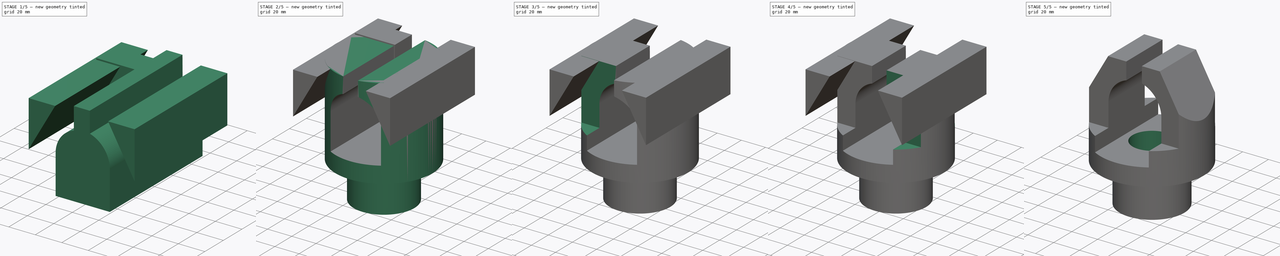
[diagram: build sequence overview — one tinted view per stage of 5, left to right]
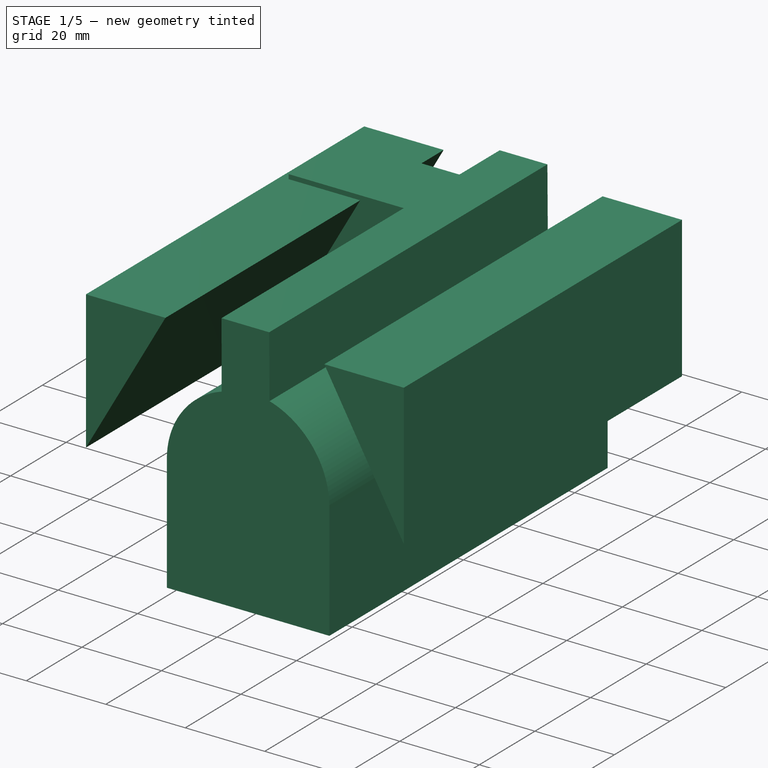
[diagram: stage 1 of 5 — iso view after this stage's code; geometry added in this stage tinted green]
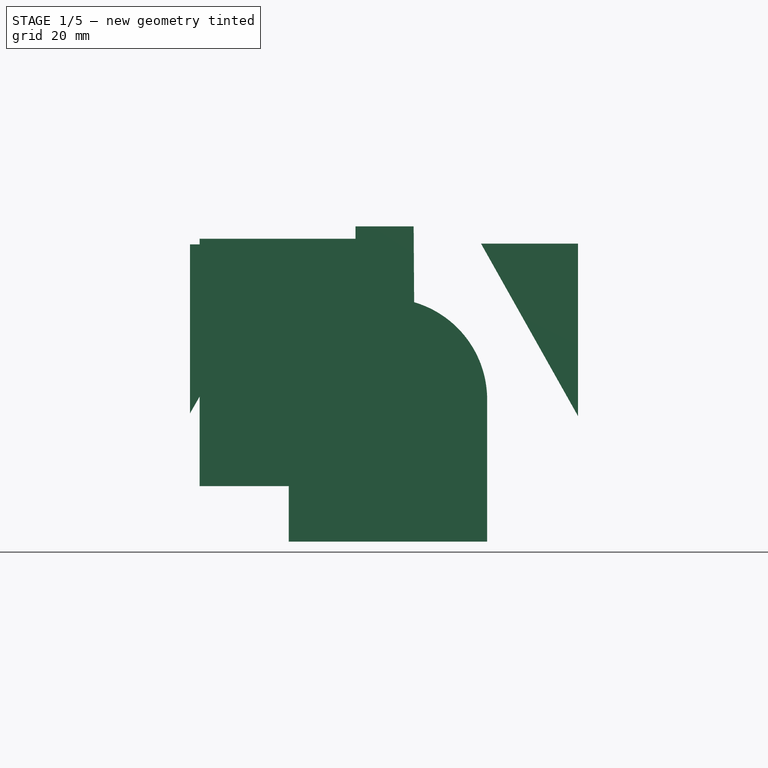
[diagram: stage 1 of 5 — front view after this stage's code; geometry added in this stage tinted green]
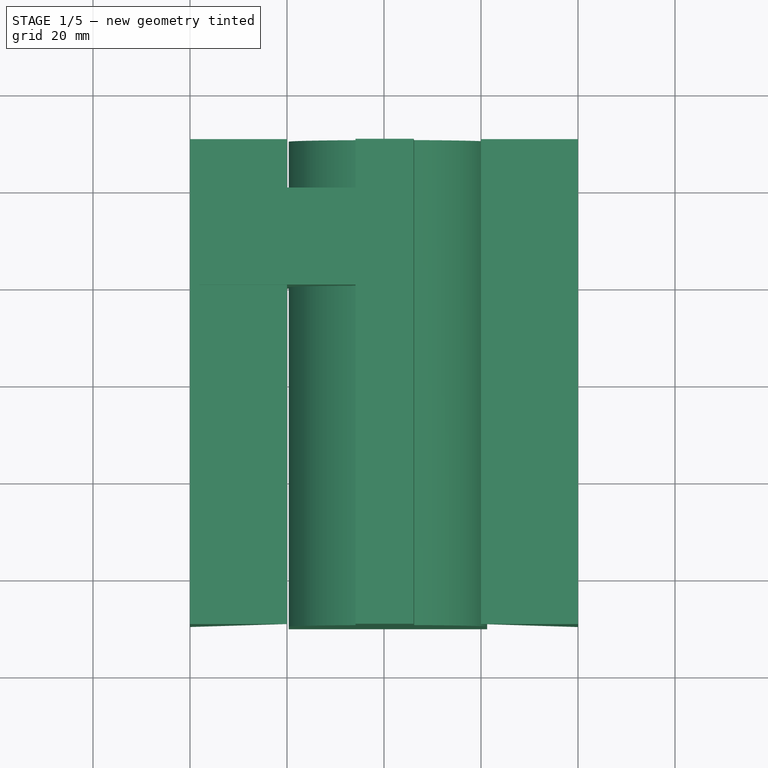
[diagram: stage 1 of 5 — top view after this stage's code; geometry added in this stage tinted green]
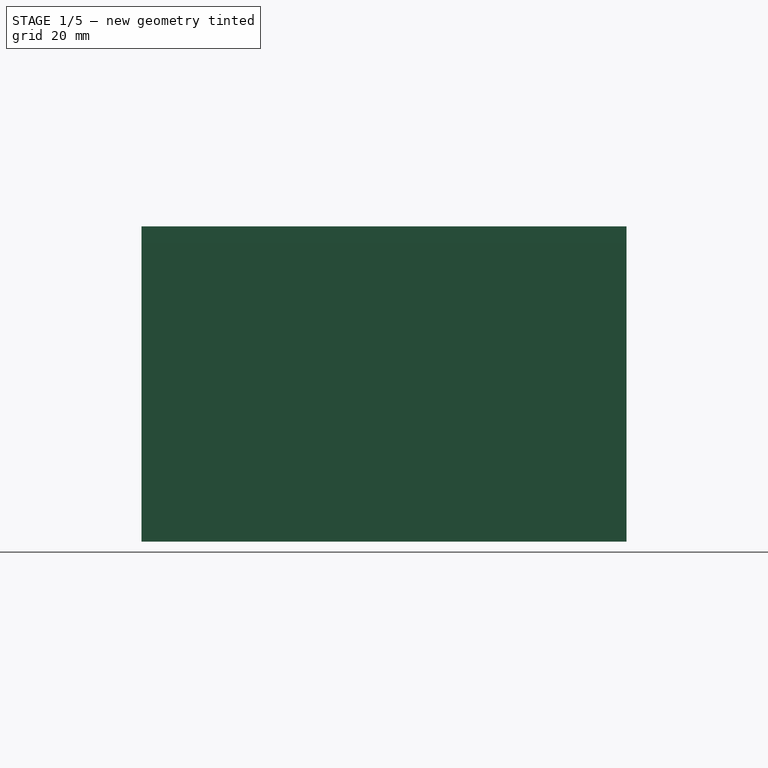
[diagram: stage 1 of 5 — right view after this stage's code; geometry added in this stage tinted green]
FCSTD DOCUMENT  (FreeCAD 0.14R3702 (Git))
Label: ejer11
License: CC-BY 3.0
LicenseURL: http://creativecommons.org/licenses/by/3.0/
objects: Sketcher::SketchObject×7, Part::Cut×7, PartDesign::Pad×5, Part::Box×4, PartDesign::Pocket×2, Part::MultiFuse×1
note: 33 computed .brp shape members not serialized (recipe doc carries the construction recipe); baked Part::Feature solids carry a one-line shape summary decoded from their .brp

FEATURE [Sketcher::SketchObject] Sketch002
  Placement = pos=(-81,0,6) rot=(-1,0,0;4.71239rad)
  sketch-geometry (8):
    g0: LineSegment StartX=61.374 StartY=37.5545 StartZ=0 EndX=102.261 EndY=37.5545 EndZ=0
    g1: LineSegment StartX=61.374 StartY=37.5545 StartZ=0 EndX=61.374 EndY=67.546 EndZ=0
    g2: LineSegment StartX=87.2111 StartY=86.9199 StartZ=0 EndX=87.1119 EndY=102.555 EndZ=0
    g3: LineSegment StartX=87.1119 StartY=102.555 StartZ=0 EndX=75.1119 EndY=102.555 EndZ=0
    g4: LineSegment StartX=75.1119 StartY=102.555 StartZ=0 EndX=75.1584 EndY=85.861 EndZ=0
    g5: ArcOfCircle CenterX=81.3618 CenterY=66.8474 CenterZ=0 NormalX=0 NormalY=0 NormalZ=1 Radius=20 StartAngle=1.88617 EndAngle=3.10665
    g6: LineSegment StartX=102.261 StartY=37.5545 StartZ=0 EndX=102.261 EndY=66.2573 EndZ=0
    g7: ArcOfCircle CenterX=81.3618 CenterY=66.8474 CenterZ=0 NormalX=0 NormalY=0 NormalZ=1 Radius=20.9074 StartAngle=6.25496 EndAngle=7.57043
  constraints (16):
    c: Horizontal(g0)
    c: Vertical(g1)
    c: Coincident(g0,g1)
    c: Coincident(g2,g3)
    c: Horizontal(g3)
    c: Coincident(g3,g4)
    c: DistanceX(g3) = -12
    c: Coincident(g4,g5)
    c: Coincident(g1,g5)
    c: DistanceY(g0,g2) = 65
    c: Coincident(g6,g0)
    c: Vertical(g6)
    c: Radius(g5) = 20
    c: Coincident(g7,g5)
    c: Coincident(g7,g2)
    c: Coincident(g7,g6)
FEATURE [PartDesign::Pad] Pad002
  Length = 100
  Length2 = 100
  Midplane = true
  Placement = pos=(-81,0,6) rot=(-1,0,0;4.71239rad)
  Sketch = -> Sketch002
  Type = 0
FEATURE [Part::Box] Box003  label="Cubo003"
  Height = 51
  Length = 33
  Placement = pos=(-38,20,55) rot=(0,0,1;0rad)
  Width = 20
FEATURE [Sketcher::SketchObject] Sketch003
  Placement = pos=(0,0,0) rot=(-1,0,0;4.71239rad)
  sketch-geometry (3):
    g0: LineSegment StartX=20 StartY=105 StartZ=0 EndX=40 EndY=69.4381 EndZ=0
    g1: LineSegment StartX=40 StartY=69.4381 StartZ=0 EndX=40 EndY=105 EndZ=0
    g2: LineSegment StartX=40 StartY=105 StartZ=0 EndX=20 EndY=105 EndZ=0
  constraints (5):
    c: Coincident(g0,g1)
    c: Vertical(g1)
    c: Coincident(g1,g2)
    c: Coincident(g2,g0)
    c: Horizontal(g2)
FEATURE [PartDesign::Pad] Pad003
  Length = 100
  Length2 = 100
  Midplane = true
  Placement = pos=(0,0,0) rot=(-1,0,0;4.71239rad)
  Sketch = -> Sketch003
  Type = 0
FEATURE [Sketcher::SketchObject] Sketch004
  Placement = pos=(0,0,0) rot=(-1,0,0;4.71239rad)
  sketch-geometry (6):
    g0: LineSegment [constr] StartX=-40 StartY=0 StartZ=0 EndX=-40 EndY=70 EndZ=0
    g1: LineSegment [constr] StartX=-40 StartY=-0.150125 StartZ=0 EndX=-40 EndY=104.85 EndZ=0
    g2: LineSegment [constr] StartX=-40 StartY=104.85 StartZ=0 EndX=-20 EndY=104.85 EndZ=0
    g3: LineSegment StartX=-40 StartY=70 StartZ=0 EndX=-20 EndY=104.85 EndZ=0
    g4: LineSegment StartX=-40 StartY=70 StartZ=0 EndX=-40 EndY=104.85 EndZ=0
    g5: LineSegment StartX=-40 StartY=104.85 StartZ=0 EndX=-20 EndY=104.85 EndZ=0
  constraints (16):
    c: PointOnObject(g0,g-1)
    c: Vertical(g0)
    c: DistanceX(g-1,g0) = -40
    c: DistanceY(g0) = 70
    c: Vertical(g1)
    c: DistanceY(g1,g1) = -105
    c: DistanceX(g-1,g1) = -40
    c: Coincident(g2,g1)
    c: Horizontal(g2)
    c: DistanceX(g2) = 20
    c: Coincident(g3,g0)
    c: Coincident(g0,g4)
    c: Coincident(g4,g1)
    c: Coincident(g4,g5)
    c: Coincident(g2,g3)
    c: Coincident(g2,g5)
FEATURE [PartDesign::Pad] Pad004
  Length = 100
  Length2 = 100
  Midplane = true
  Placement = pos=(0,0,0) rot=(-1,0,0;4.71239rad)
  Sketch = -> Sketch004
  Type = 0
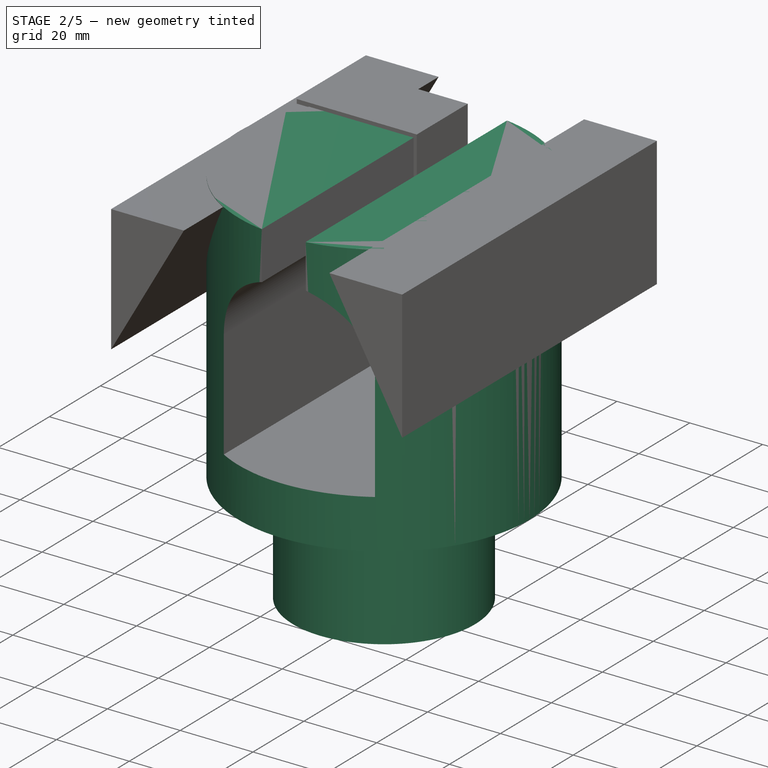
[diagram: stage 2 of 5 — iso view after this stage's code; geometry added in this stage tinted green]
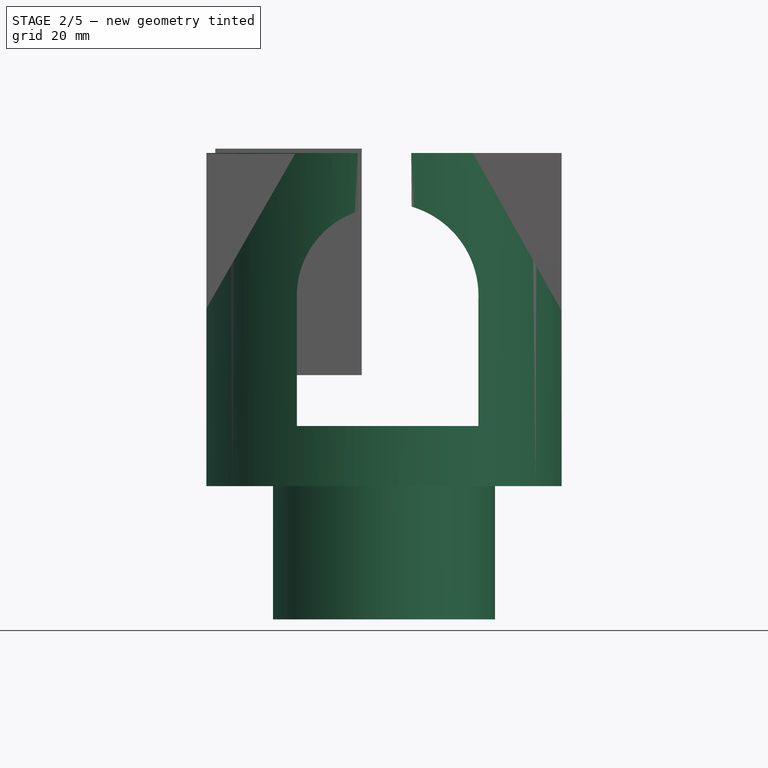
[diagram: stage 2 of 5 — front view after this stage's code; geometry added in this stage tinted green]
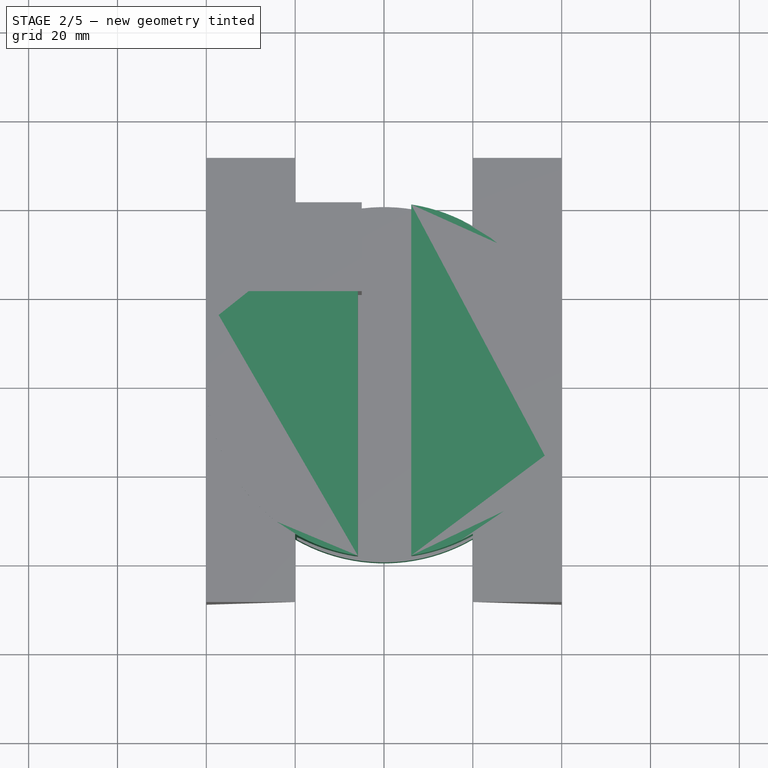
[diagram: stage 2 of 5 — top view after this stage's code; geometry added in this stage tinted green]
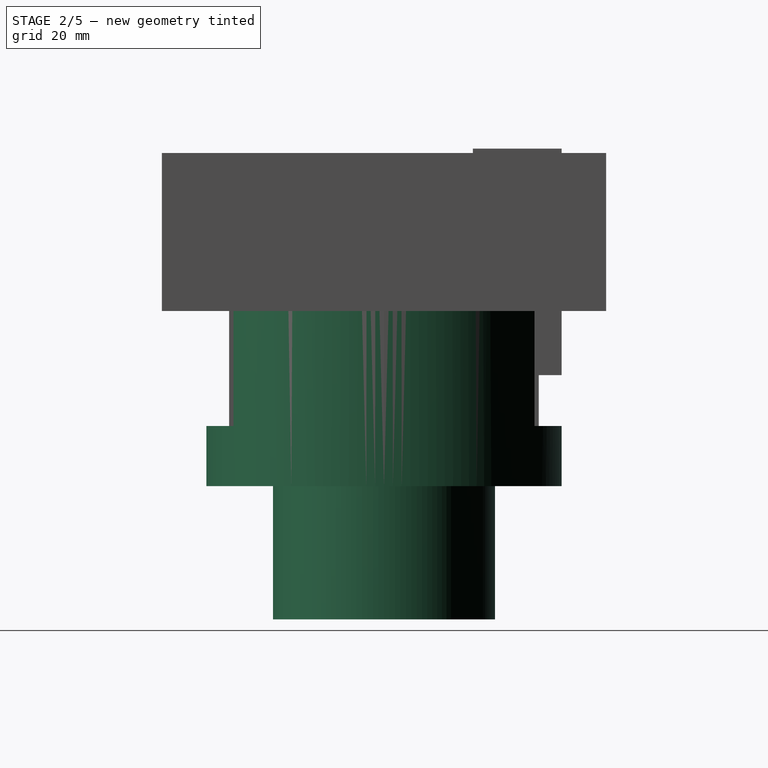
[diagram: stage 2 of 5 — right view after this stage's code; geometry added in this stage tinted green]
FEATURE [Sketcher::SketchObject] Sketch
  sketch-geometry (1):
    g0: Circle CenterX=0 CenterY=0 CenterZ=0 NormalX=0 NormalY=0 NormalZ=1 Radius=25
  constraints (2):
    c: Coincident(g0,g-1)
    c: Radius(g0) = 25
FEATURE [PartDesign::Pad] Pad
  Length = 30
  Length2 = 100
  Sketch = -> Sketch
  Type = 0
FEATURE [Sketcher::SketchObject] Sketch001
  Placement = pos=(0,0,30) rot=(0,0,1;0rad)
  Support = -> Pad [Face3]
  sketch-geometry (1):
    g0: Circle CenterX=0 CenterY=0 CenterZ=0 NormalX=0 NormalY=0 NormalZ=1 Radius=40
  constraints (2):
    c: Coincident(g0,g-1)
    c: Radius(g0) = 40
FEATURE [PartDesign::Pad] Pad001
  Length = 75
  Length2 = 100
  Sketch = -> Sketch001
  Type = 0
FEATURE [Part::Cut] Cut
  Base = -> Pad001
  Tool = -> Pad002
FEATURE [Part::MultiFuse] Fusion
  Shapes = -> [Cut,Pad]
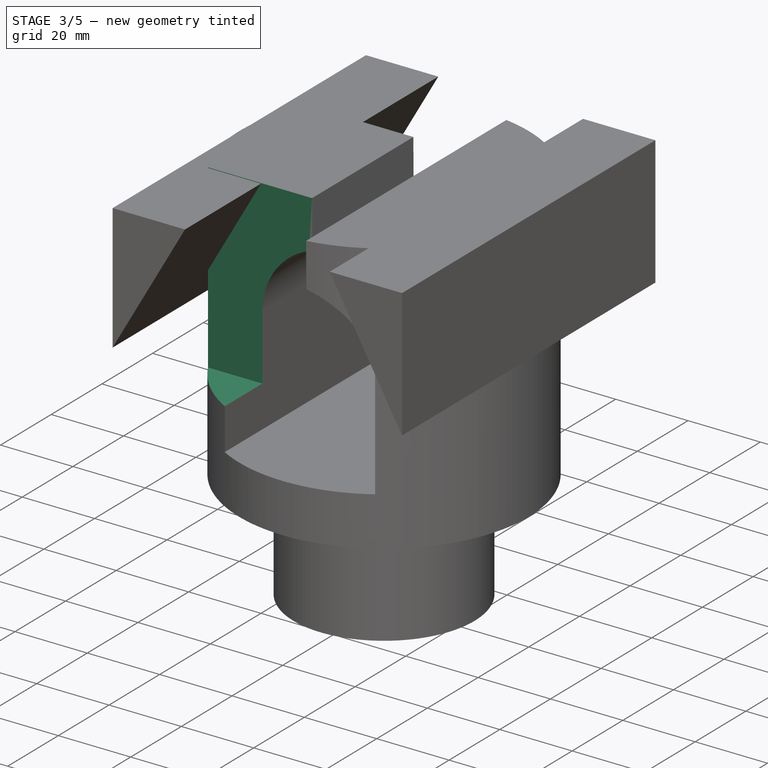
[diagram: stage 3 of 5 — iso view after this stage's code; geometry added in this stage tinted green]
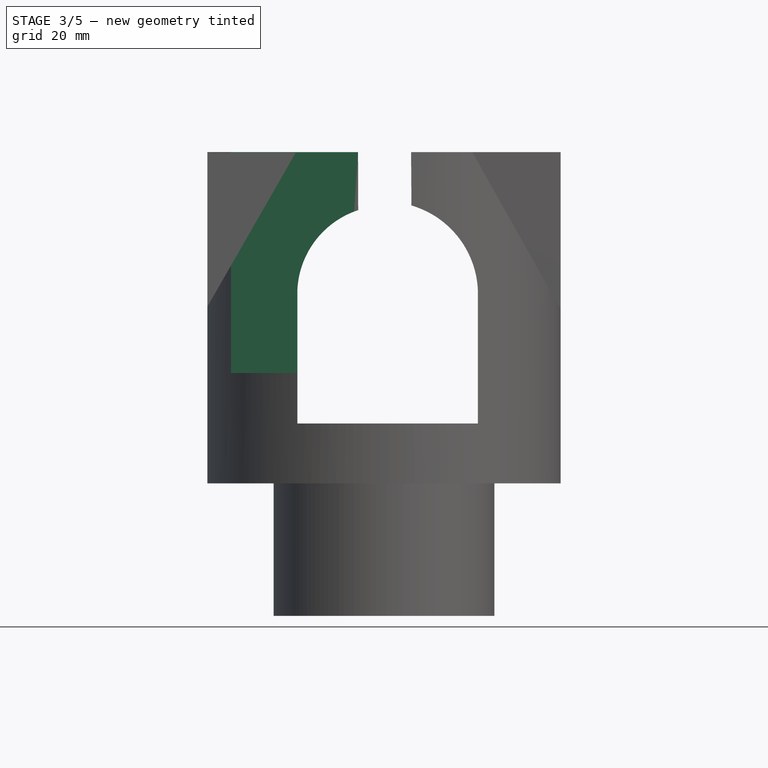
[diagram: stage 3 of 5 — front view after this stage's code; geometry added in this stage tinted green]
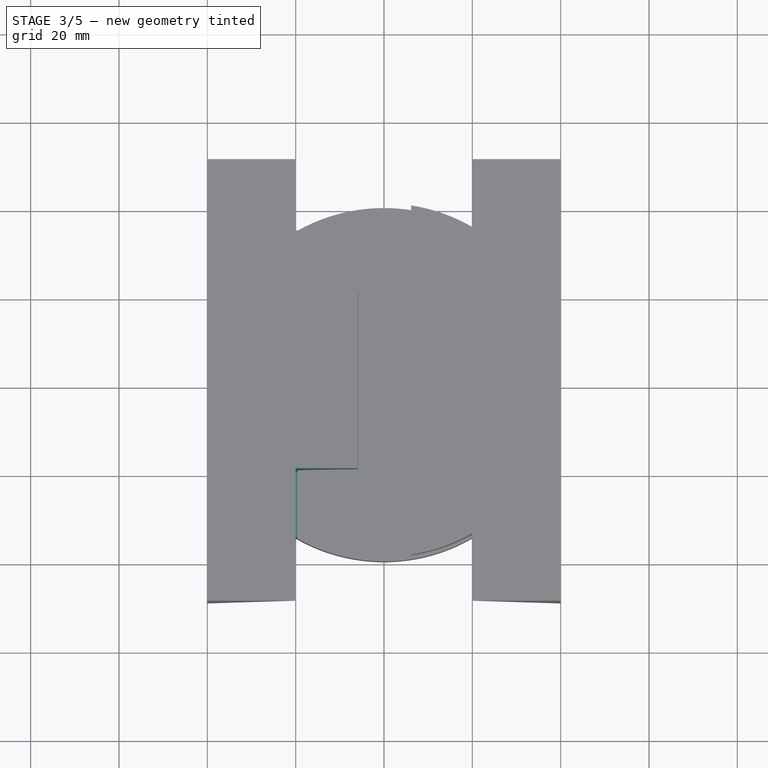
[diagram: stage 3 of 5 — top view after this stage's code; geometry added in this stage tinted green]
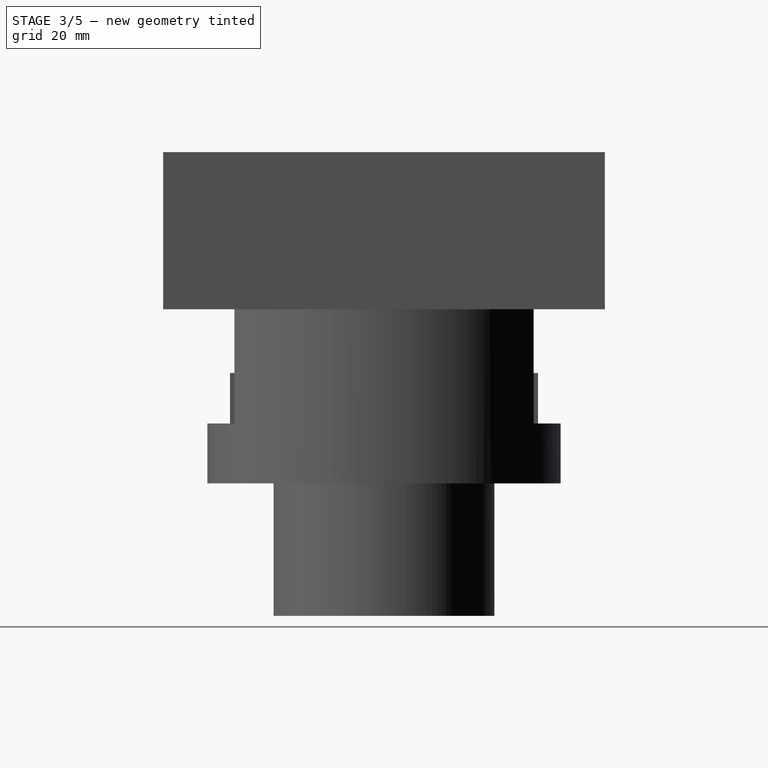
[diagram: stage 3 of 5 — right view after this stage's code; geometry added in this stage tinted green]
FEATURE [Part::Box] Box002  label="Cubo002"
  Height = 51
  Length = 33
  Placement = pos=(-38,-40,55) rot=(0,0,1;0rad)
  Width = 20
FEATURE [Part::Cut] Cut001
  Base = -> Fusion
  Tool = -> Box003
FEATURE [Part::Cut] Cut002
  Base = -> Cut001
  Tool = -> Box002
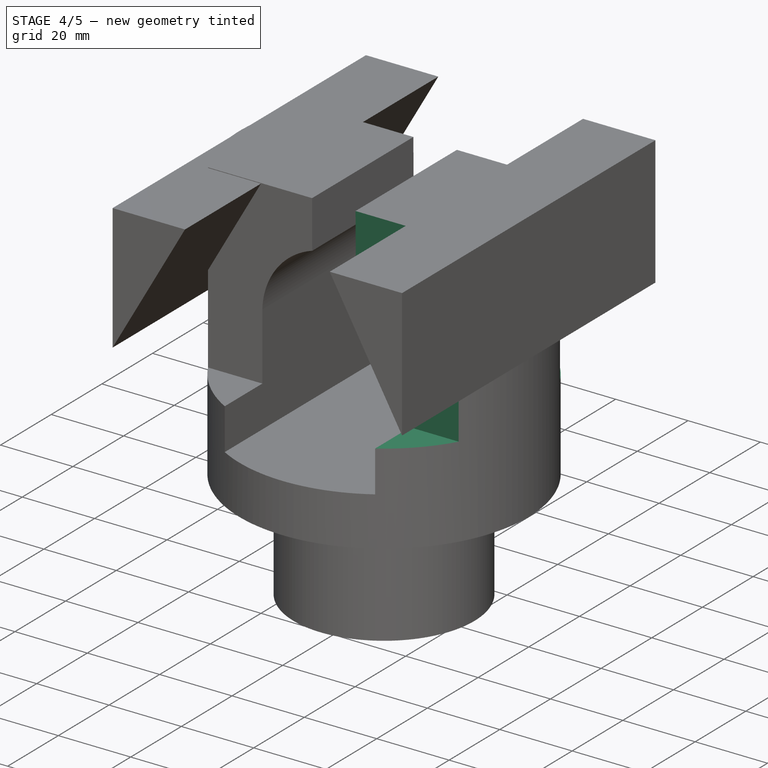
[diagram: stage 4 of 5 — iso view after this stage's code; geometry added in this stage tinted green]
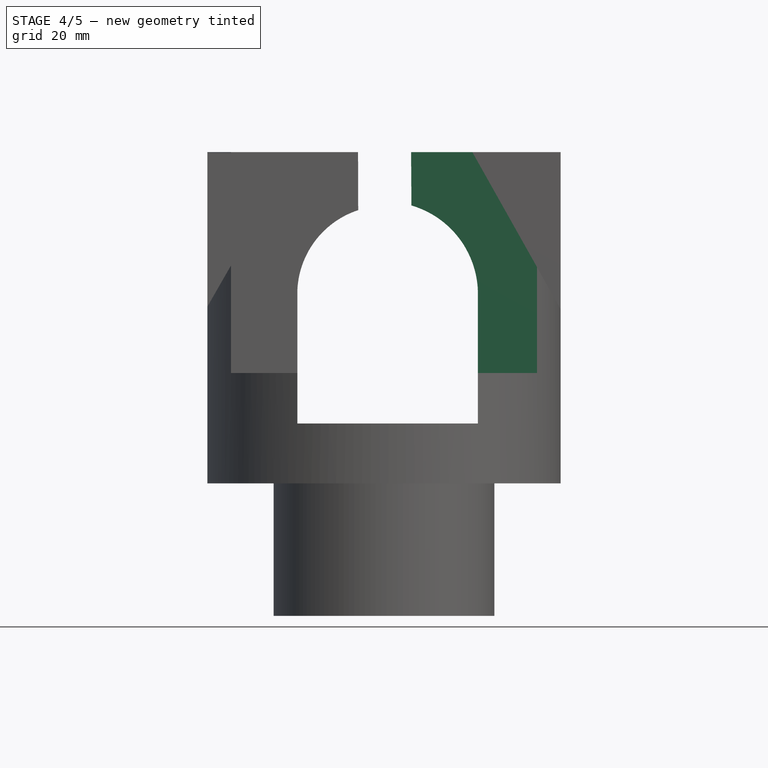
[diagram: stage 4 of 5 — front view after this stage's code; geometry added in this stage tinted green]
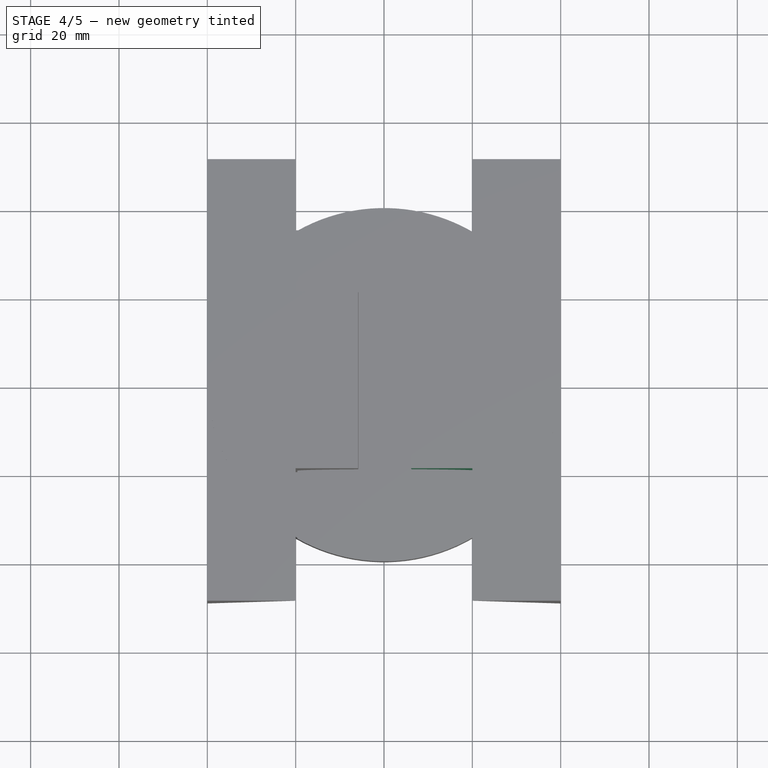
[diagram: stage 4 of 5 — top view after this stage's code; geometry added in this stage tinted green]
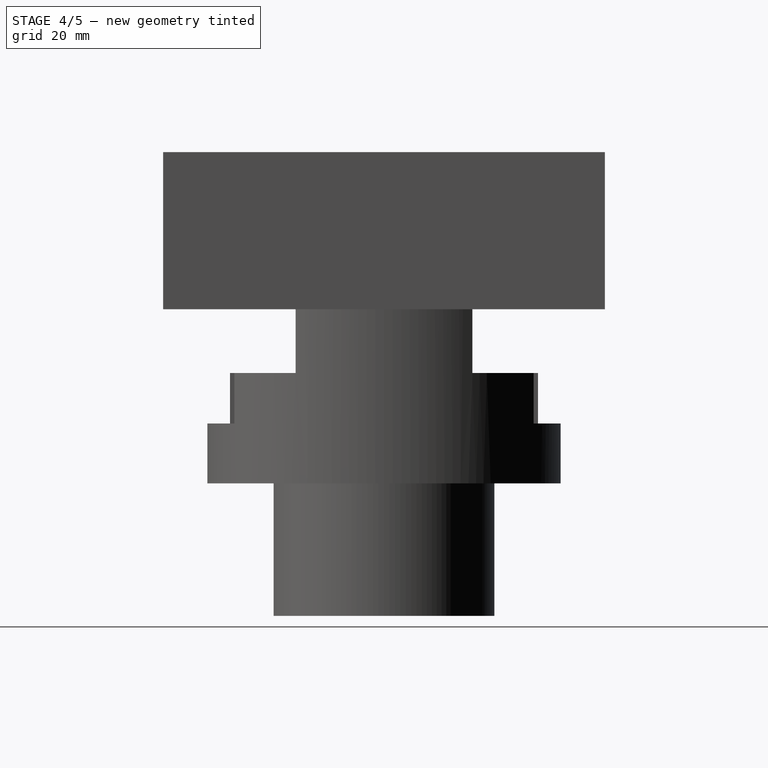
[diagram: stage 4 of 5 — right view after this stage's code; geometry added in this stage tinted green]
FEATURE [Part::Box] Box  label="Cubo"
  Height = 51
  Length = 33
  Placement = pos=(5,20,55) rot=(0,0,1;0rad)
  Width = 20
FEATURE [Part::Box] Box001  label="Cubo001"
  Height = 51
  Length = 33
  Placement = pos=(5,-40,55) rot=(0,0,1;0rad)
  Width = 20
FEATURE [Part::Cut] Cut003
  Base = -> Cut002
  Tool = -> Box
FEATURE [Part::Cut] Cut004
  Base = -> Cut003
  Tool = -> Box001
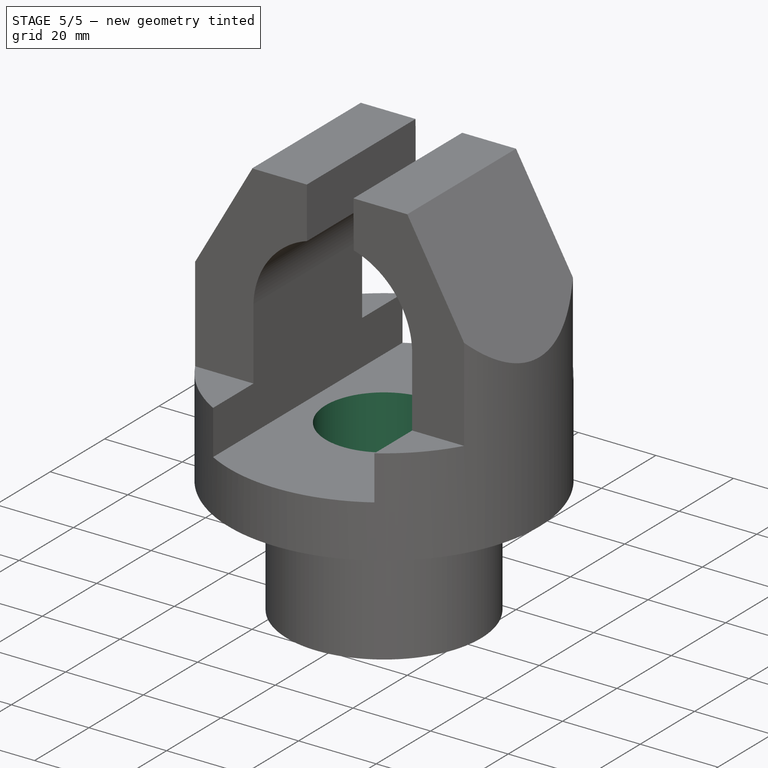
[diagram: stage 5 of 5 — iso view after this stage's code; geometry added in this stage tinted green]
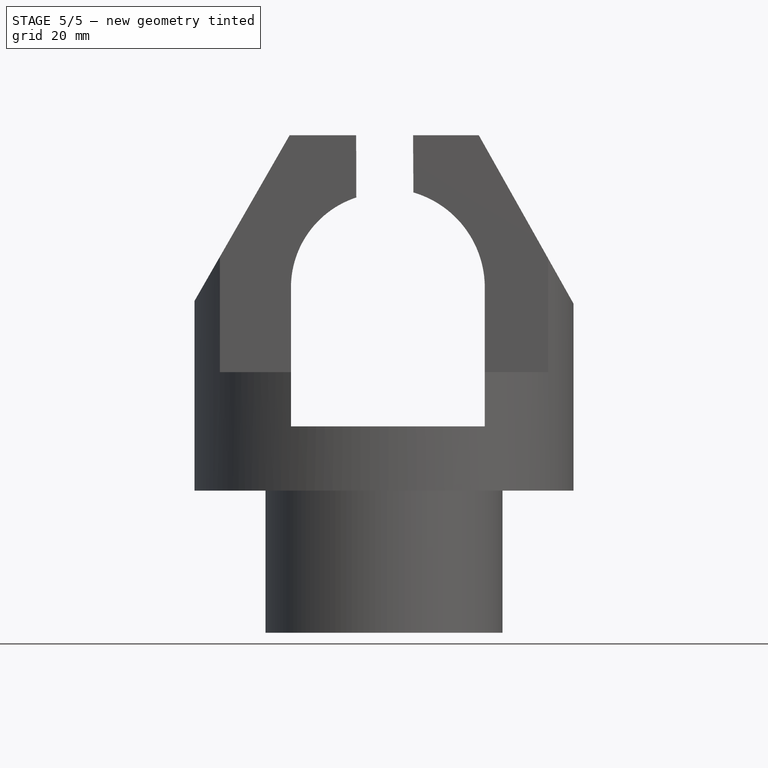
[diagram: stage 5 of 5 — front view after this stage's code; geometry added in this stage tinted green]
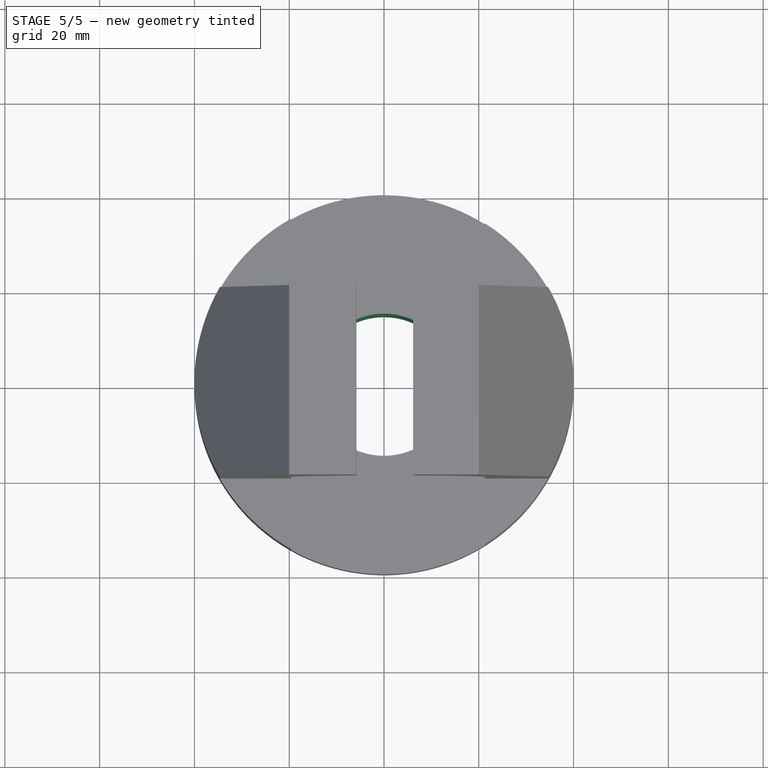
[diagram: stage 5 of 5 — top view after this stage's code; geometry added in this stage tinted green]
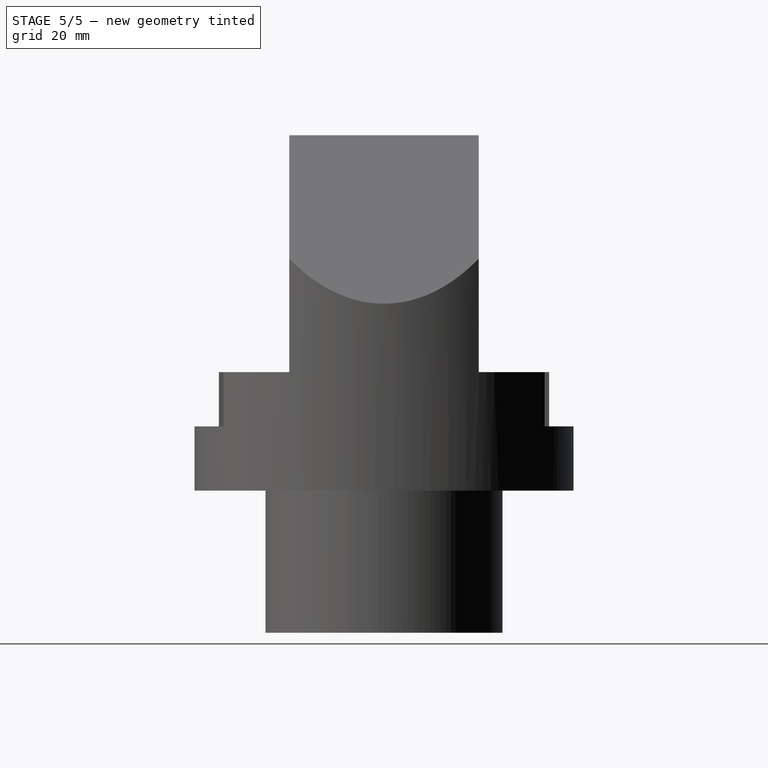
[diagram: stage 5 of 5 — right view after this stage's code; geometry added in this stage tinted green]
FEATURE [Part::Cut] Cut005
  Base = -> Cut004
  Tool = -> Pad003
FEATURE [Part::Cut] Cut006
  Base = -> Cut005
  Tool = -> Pad004
FEATURE [Sketcher::SketchObject] Sketch005
  Placement = pos=(0,0,105) rot=(0,0,1;0rad)
  Support = -> Cut006 [Face22]
  sketch-geometry (4):
    g0: LineSegment StartX=-41.2988 StartY=23.5719 StartZ=0 EndX=-19.9792 EndY=23.5719 EndZ=0
    g1: LineSegment StartX=-19.9792 StartY=23.5719 StartZ=0 EndX=-19.9792 EndY=-25.8035 EndZ=0
    g2: LineSegment StartX=-19.9792 StartY=-25.8035 StartZ=0 EndX=-41.2988 EndY=-25.8035 EndZ=0
    g3: LineSegment StartX=-41.2988 StartY=-25.8035 StartZ=0 EndX=-41.2988 EndY=23.5719 EndZ=0
  constraints (8):
    c: Coincident(g0,g1)
    c: Coincident(g1,g2)
    c: Coincident(g2,g3)
    c: Coincident(g3,g0)
    c: Horizontal(g0)
    c: Horizontal(g2)
    c: Vertical(g1)
    c: Vertical(g3)
FEATURE [PartDesign::Pocket] Pocket
  Length = 0.2
  Sketch = -> Sketch005
  Type = 0
FEATURE [Sketcher::SketchObject] Sketch006
  Placement = pos=(0,0,43.5545) rot=(0,0,1;0rad)
  Support = -> Pocket [Face7]
  sketch-geometry (1):
    g0: Circle CenterX=0 CenterY=0 CenterZ=0 NormalX=0 NormalY=0 NormalZ=1 Radius=15
  constraints (2):
    c: Coincident(g0,g-1)
    c: Radius(g0) = 15
FEATURE [PartDesign::Pocket] Pocket001
  Length = 5
  Sketch = -> Sketch006
  Type = 1
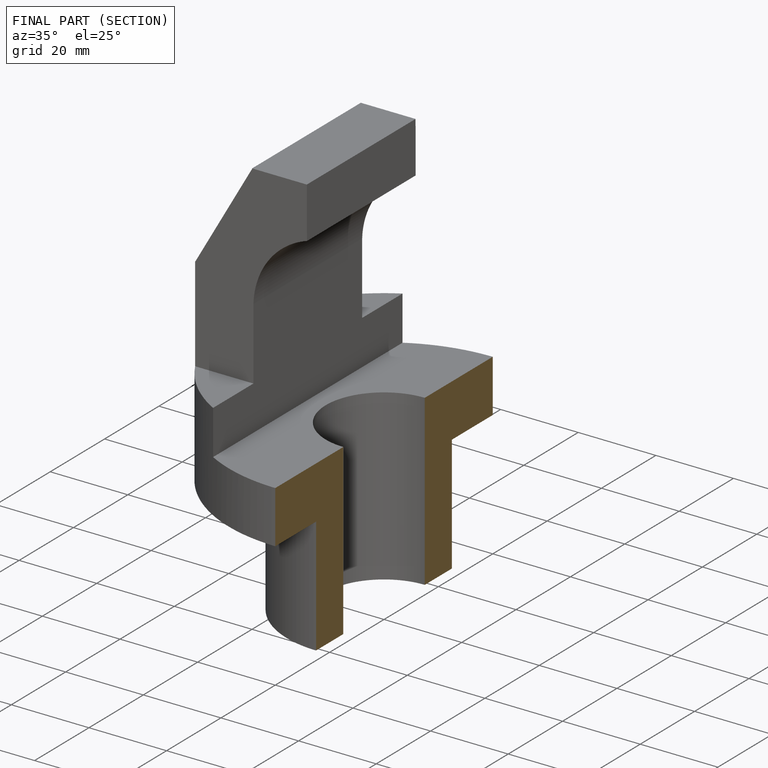
[diagram: finished part — half-section view (interior)]
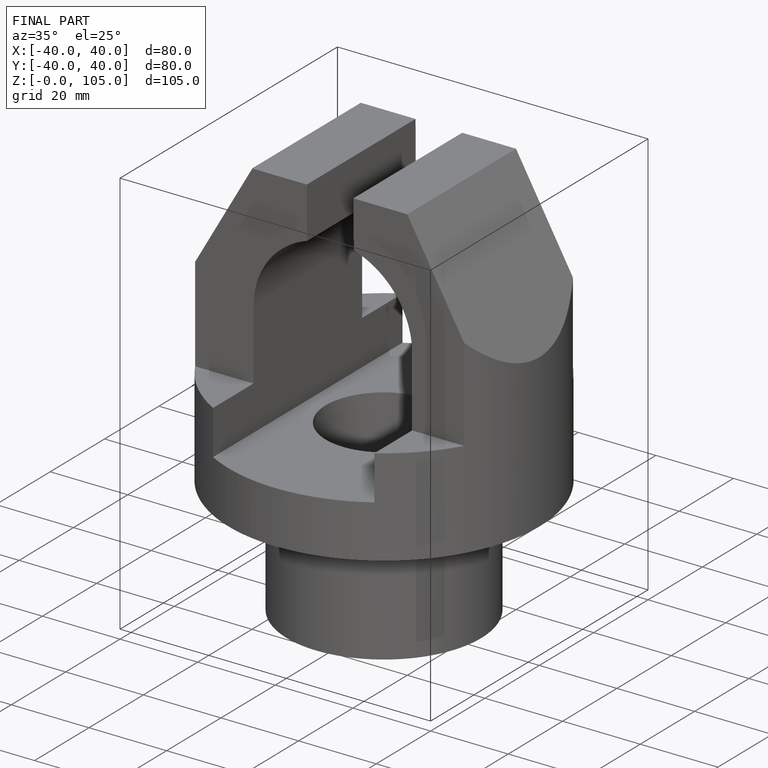
[diagram: finished part — iso view with bounding-box wireframe]
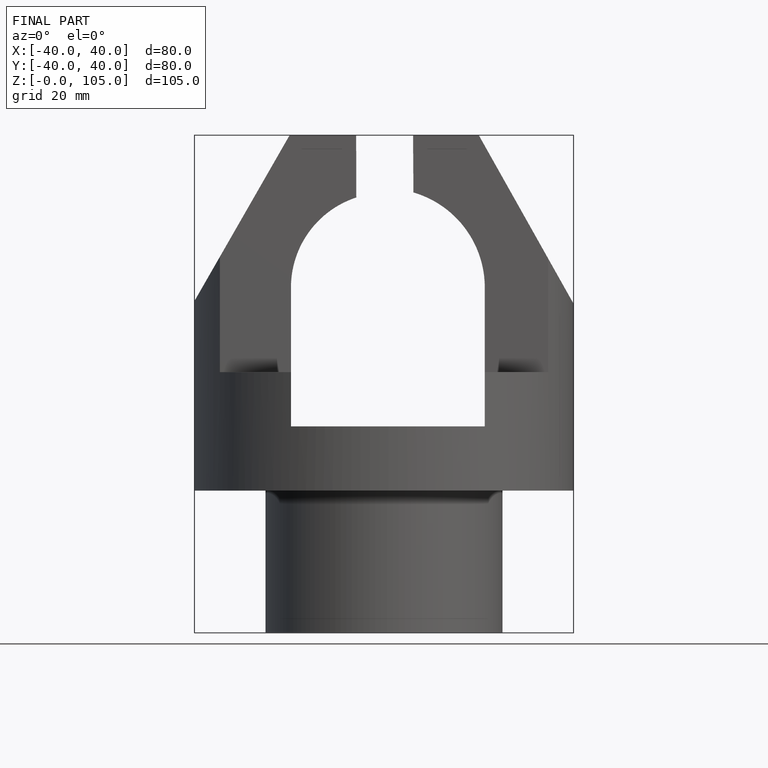
[diagram: finished part — front view with bounding-box wireframe]
